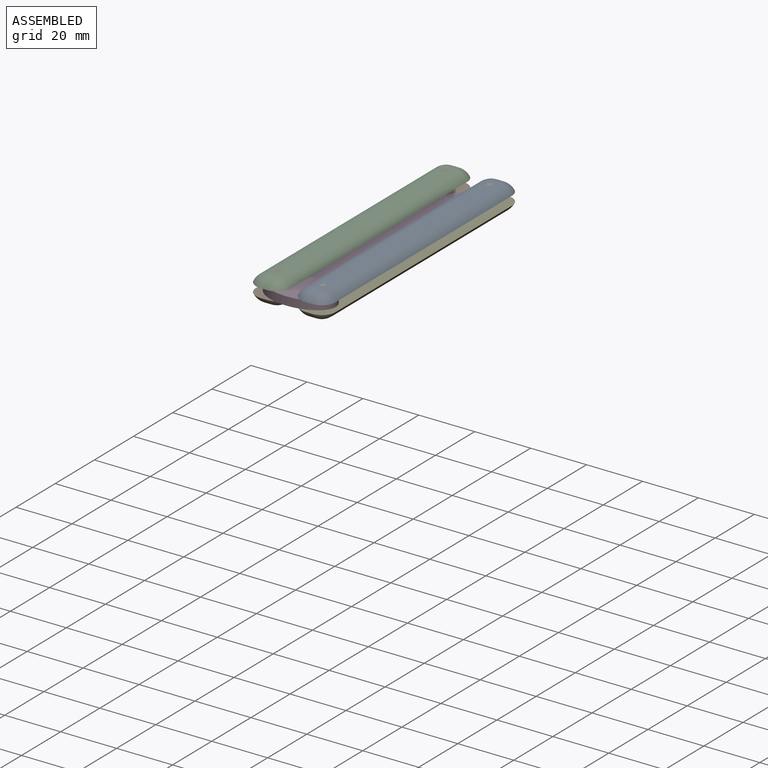
[diagram: assembled view]
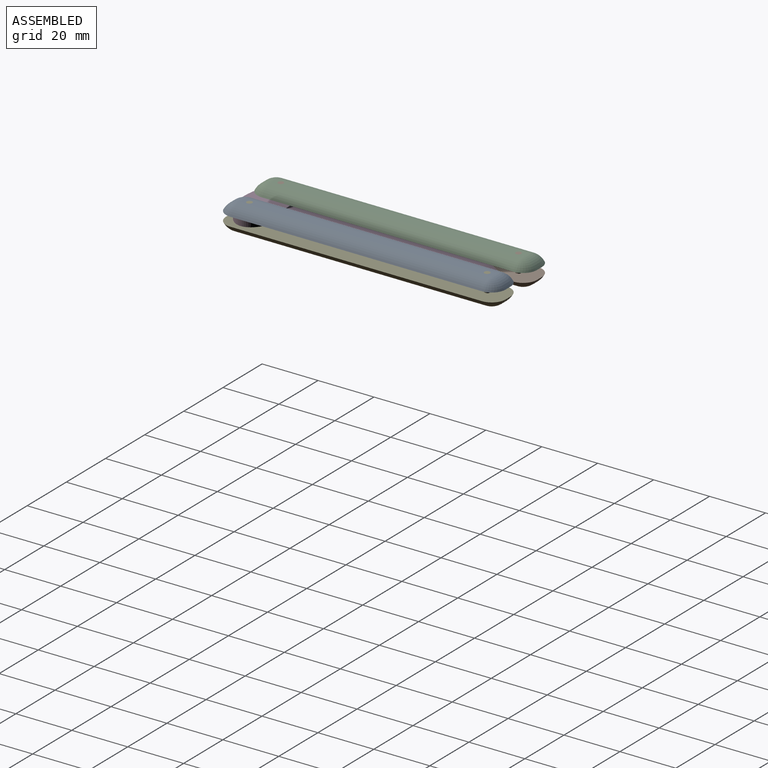
[diagram: assembled view, second angle]
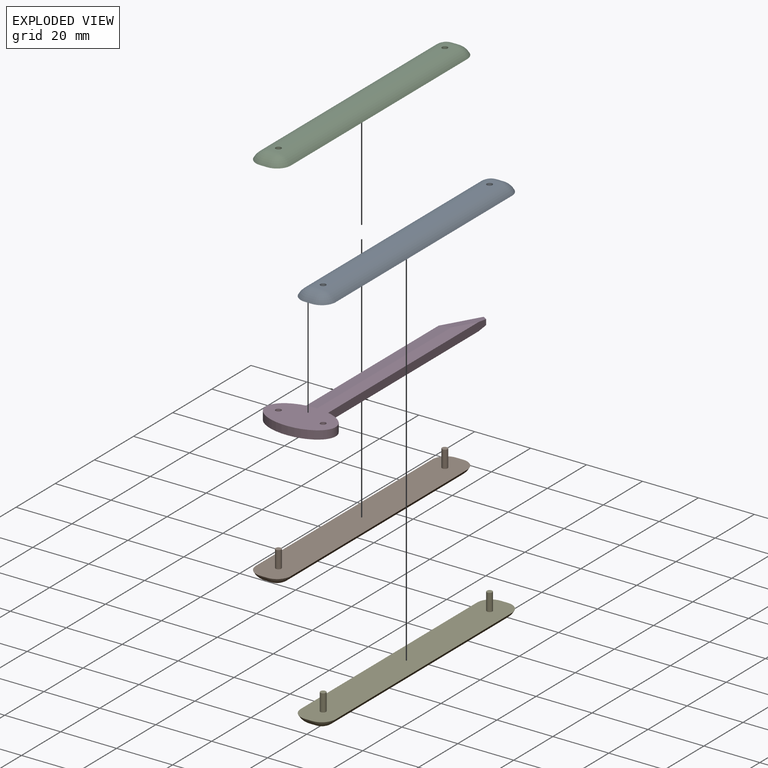
[diagram: exploded view]
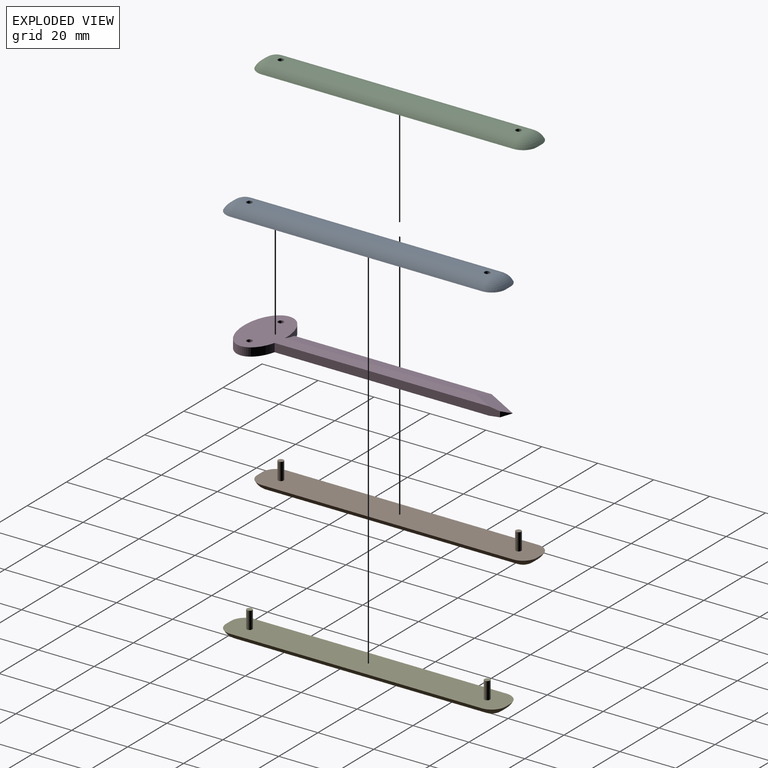
[diagram: exploded view, second angle]
ASSEMBLY  parts=5 mates=4
PART A: 12 faces, bbox 12.5x100x3 mm
  f0: cylinder r=1mm len=3mm, axis (0,0,-1), area 18.8mm2, adj f2,f3
  f1: cylinder r=1mm len=3mm, axis (0,0,-1), area 18.8mm2, adj f2,f3
  f2: plane 90.2x2.7mm, normal (0,0,1), area 237.4mm2, adj f0,f1,f4,f5,f6,f7,f8,f9
  f3: plane 100x12.5mm, normal (0,0,-1), area 1222.3mm2, adj f0,f1,f4,f5,f6,f7,f8,f9
  f4: cylinder r=5.5mm len=4.9mm, axis (1,0,0), area 15.1mm2, adj f2,f3,f5,f6
  f5: torus R=0.1mm, axis (0,0,-1), area 26.9mm2, adj f2,f3,f4,f7
  f6: torus R=0.1mm, axis (0,0,-1), area 26.9mm2, adj f2,f3,f4,f8
  f7: cylinder r=5.5mm len=90mm, axis (0,1,0), area 544mm2, adj f2,f3,f5,f9
  f8: cylinder r=5.5mm len=90mm, axis (0,1,0), area 544mm2, adj f2,f3,f6,f10
  f9: torus R=0.1mm, axis (0,0,-1), area 26.9mm2, adj f2,f3,f7,f11
  f10: torus R=0.1mm, axis (0,0,-1), area 26.9mm2, adj f2,f3,f8,f11
  f11: cylinder r=5.5mm len=4.9mm, axis (1,0,0), area 15.1mm2, adj f2,f3,f9,f10
PART B: 14 faces, bbox 12.5x100x9.2 mm
  f0: plane 90.2x2.7mm, normal (0,0,1), area 243.7mm2, adj f2,f3,f4,f5,f6,f7,f8,f9
  f1: plane 100x12.5mm, normal (0,0,-1), area 1222.3mm2, adj f2,f3,f4,f5,f6,f7,f8,f9
  f2: cylinder r=5.5mm len=4.9mm, axis (1,0,0), area 15.1mm2, adj f0,f1,f3,f4
  f3: torus R=0.1mm, axis (0,0,-1), area 26.9mm2, adj f0,f1,f2,f5
  f4: torus R=0.1mm, axis (0,0,-1), area 26.9mm2, adj f0,f1,f2,f6
  f5: cylinder r=5.5mm len=90mm, axis (0,1,0), area 544mm2, adj f0,f1,f3,f7
  f6: cylinder r=5.5mm len=90mm, axis (0,1,0), area 544mm2, adj f0,f1,f4,f8
  f7: torus R=0.1mm, axis (0,0,-1), area 26.9mm2, adj f0,f1,f5,f9
  f8: torus R=0.1mm, axis (0,0,-1), area 26.9mm2, adj f0,f1,f6,f9
  f9: cylinder r=5.5mm len=4.9mm, axis (1,0,0), area 15.1mm2, adj f0,f1,f7,f8
  f10: cylinder r=1mm len=6.2mm, axis (0,0,1), area 39mm2, adj f1,f11
  f11: plane 2x2mm, normal (0,0,-1), area 3.1mm2, adj f10
  f12: cylinder r=1mm len=6.2mm, axis (0,0,1), area 39mm2, adj f1,f13
  f13: plane 2x2mm, normal (0,0,-1), area 3.1mm2, adj f12
PART C: same geometry as A
PART D: 11 faces, bbox 25x97.7x3 mm
  f0: extruded ~24.97x14.98mm, area 169.7mm2, adj f1,f5,f6,f9,f10
  f1: plane 80.63x3mm, normal (1,0,0), area 239.9mm2, adj f0,f2,f5,f6,f7,f8
  f2: plane 2.68x2.68mm, normal (0.71,0.71,0), area 3.7mm2, adj f1,f7,f8
  f3: cylinder r=1mm len=3mm, axis (0,0,-1), area 18.8mm2, adj f5,f6
  f4: cylinder r=1mm len=3mm, axis (0,0,-1), area 18.8mm2, adj f5,f6
  f5: plane 91.12x25mm, normal (0,0,1), area 607.6mm2, adj f0,f1,f3,f4,f7,f9
  f6: plane 91.12x25mm, normal (0,0,-1), area 607.6mm2, adj f0,f1,f3,f4,f8,f10
  f7: plane 14.18x10mm, normal (-0.22,0.13,0.97), area 73.3mm2, adj f1,f2,f5,f8,f9
  f8: plane 14.18x10mm, normal (-0.22,0.13,-0.97), area 73.3mm2, adj f1,f2,f6,f7,f10
  f9: plane 70.63x5.6mm, normal (-0.26,0,0.97), area 402.4mm2, adj f0,f5,f7,f10
  f10: plane 70.63x5.6mm, normal (-0.26,0,-0.97), area 402.4mm2, adj f0,f6,f8,f9
PART E: same geometry as B
PLACE A rot(axis=(0,-1,0),0deg) t=(-5.86,-19.68,4.89)mm
PLACE B rot(axis=(0,1,0),180deg) t=(-9.36,-19.68,1.89)mm
PLACE C t=(-21.86,-19.68,5.09)mm
PLACE D rot(axis=(0,-1,0),0deg) t=(-2.61,-4.68,1.89)mm
PLACE E rot(axis=(0,1,0),180deg) t=(6.64,-19.68,1.69)mm
MATE fastened B.f10 <-> C.f0  axis (0,0,1) through (-15.61,-12.18,8.09)mm
MATE revolute B.f10 <-> D.f4  axis (0,0,-1) through (-15.61,-12.18,1.89)mm
MATE fastened A.f0 <-> E.f10  axis (0,0,1) through (0.39,-12.18,7.89)mm
MATE revolute D.f3 <-> A.f0  axis (0,0,1) through (0.39,-12.18,4.89)mm
